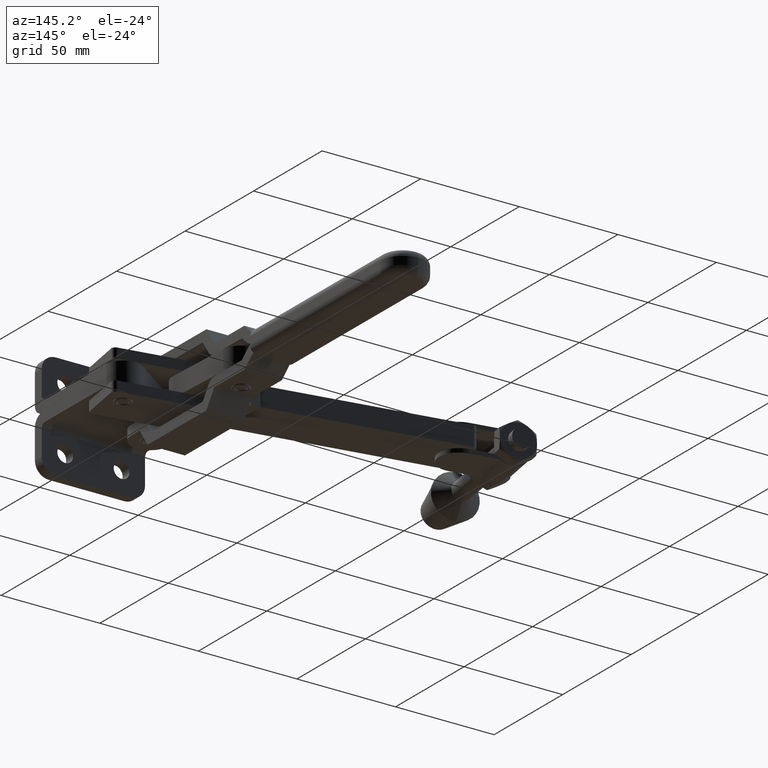
[diagram: clean part render]
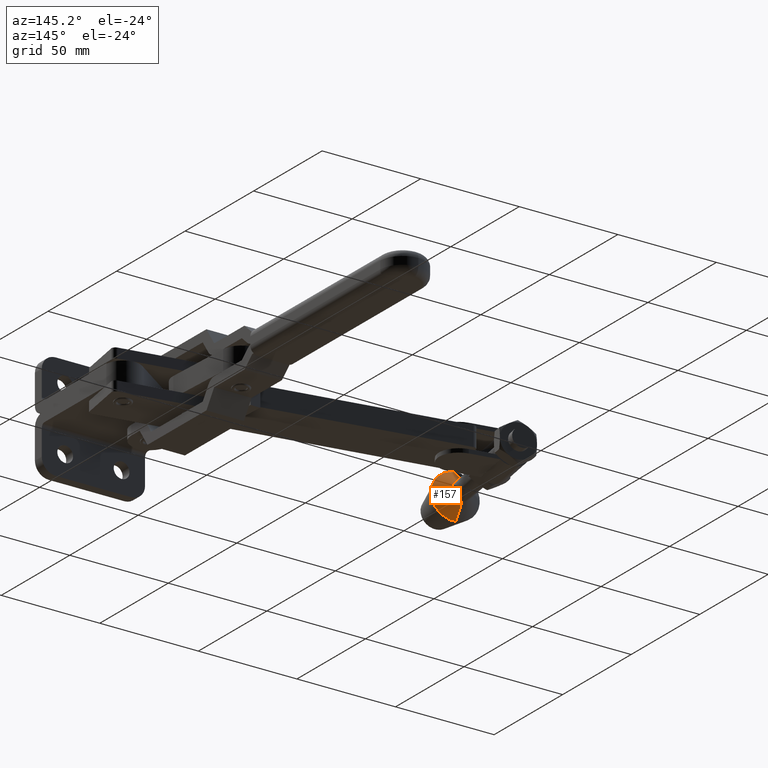
[diagram: same view with one face highlighted and labeled with its STEP entity id]
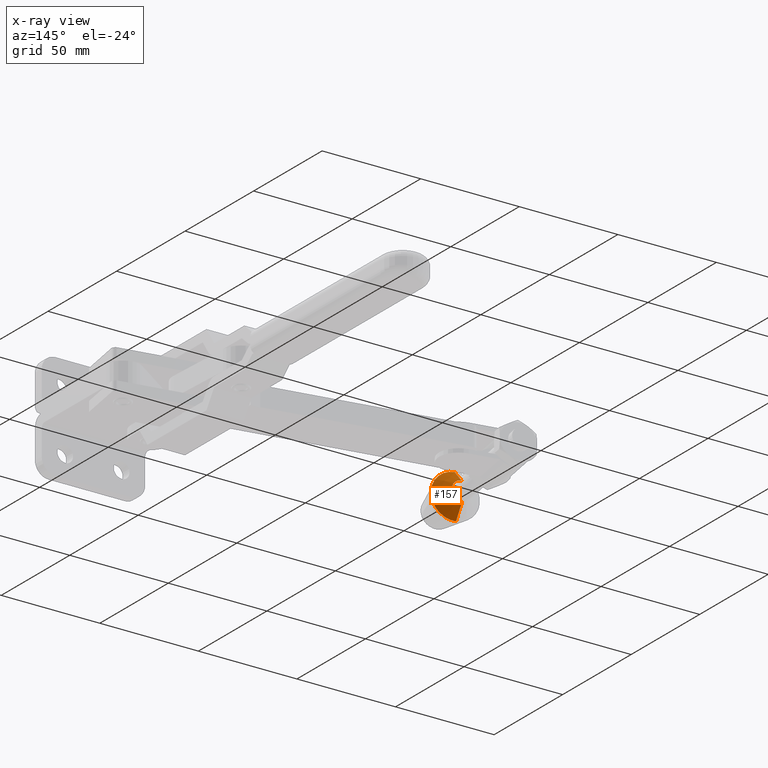
[diagram: x-ray of the same camera — body ghosted, the highlighted face saturated]
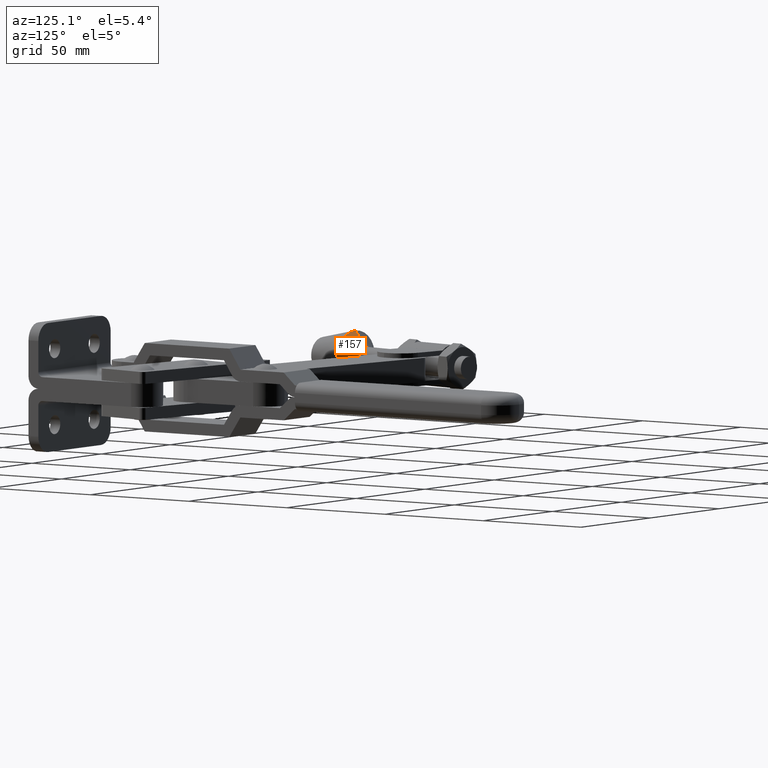
[diagram: same view with one face highlighted and labeled with its STEP entity id]
A machine part, auxiliary view. The second image highlights one B-rep face of the part: STEP entity #157.
The next image is the same camera in x-ray: the body ghosted, the highlighted face saturated — about 0% of this face is hidden behind the body in this view.
A second angle (auxiliary view) of the same face is appended — the face is thin or edge-on in the first view.
In plain terms, the highlighted conical surface has half-angle 44.723 deg.
Its self-contained STEP definition (entity closure, byte-faithful):
#157 = ADVANCED_FACE ( 'NONE', ( #4496 ), #6812, .T. ) ;
#840 = DIRECTION ( 'NONE',  ( -0.1071315741673477700, -0.7026214118334855900, 0.7034528963971542500 ) ) ;
#955 = DIRECTION ( 'NONE',  ( -0.1756898518898459800, -0.9844455677907865100, -8.379368557693178000E-015 ) ) ;
#1307 = DIRECTION ( 'NONE',  ( -0.1425287881150902000, -0.6963042202291190900, -0.7034528963971661300 ) ) ;
#1485 = EDGE_CURVE ( 'NONE', #2766, #8780, #8926, .T. ) ;
#1670 = CARTESIAN_POINT ( 'NONE',  ( -138.2011147629992000, 32.58936239767282200, 1.370554939042618600E-013 ) ) ;
#2766 = VERTEX_POINT ( 'NONE', #5164 ) ;
#2943 = EDGE_LOOP ( 'NONE', ( #9666, #9495, #6005, #5868 ) ) ;
#3620 = CARTESIAN_POINT ( 'NONE',  ( -137.9194190106190700, 32.53908934385145100, 11.19634405166051600 ) ) ;
#3725 = CARTESIAN_POINT ( 'NONE',  ( -138.2011147629992000, 32.58936239767282200, 1.370554939042618600E-013 ) ) ;
#3883 = AXIS2_PLACEMENT_3D ( 'NONE', #4841, #4880, #4945 ) ;
#4028 = DIRECTION ( 'NONE',  ( -0.02515140646251148500, 0.004488665519765569300, -0.9996735760411041800 ) ) ;
#4496 = FACE_OUTER_BOUND ( 'NONE', #2943, .T. ) ;
#4546 = DIRECTION ( 'NONE',  ( -0.02515140646251148500, 0.004488665519765569300, -0.9996735760411041800 ) ) ;
#4841 = CARTESIAN_POINT ( 'NONE',  ( -137.0591307257152200, 38.98825858831292400, 1.915213895292675300E-013 ) ) ;
#4880 = DIRECTION ( 'NONE',  ( -0.1756898518898459800, -0.9844455677907865100, -8.379368557693178000E-015 ) ) ;
#4945 = DIRECTION ( 'NONE',  ( -0.02515140646251232100, 0.004488665519765048900, -0.9996735760411040700 ) ) ;
#5112 = EDGE_CURVE ( 'NONE', #5430, #7339, #10080, .T. ) ;
#5164 = CARTESIAN_POINT ( 'NONE',  ( -137.1789142989929400, 39.00963585785080300, -4.760945405895592200 ) ) ;
#5430 = VERTEX_POINT ( 'NONE', #7472 ) ;
#5795 = CARTESIAN_POINT ( 'NONE',  ( -137.9194190106190700, 32.53908934385145100, 11.19634405166051600 ) ) ;
#5868 = ORIENTED_EDGE ( 'NONE', *, *, #6201, .F. ) ;
#6005 = ORIENTED_EDGE ( 'NONE', *, *, #5112, .F. ) ;
#6201 = EDGE_CURVE ( 'NONE', #2766, #5430, #10681, .T. ) ;
#6812 = CONICAL_SURFACE ( 'NONE', #9204, 11.20000000000001000, 0.7805672831034714500 ) ;
#6959 = LINE ( 'NONE', #5795, #7211 ) ;
#6981 = CARTESIAN_POINT ( 'NONE',  ( -136.9393471524375100, 38.96688131877504400, 4.760945405895971500 ) ) ;
#7123 = CARTESIAN_POINT ( 'NONE',  ( -138.4828105153793300, 32.63963545149419300, -11.19634405166024000 ) ) ;
#7211 = VECTOR ( 'NONE', #840, 1000.000000000000100 ) ;
#7339 = VERTEX_POINT ( 'NONE', #3620 ) ;
#7472 = CARTESIAN_POINT ( 'NONE',  ( -138.4828105153793300, 32.63963545149419300, -11.19634405166024400 ) ) ;
#8544 = VECTOR ( 'NONE', #1307, 1000.000000000000000 ) ;
#8716 = AXIS2_PLACEMENT_3D ( 'NONE', #3725, #9488, #4546 ) ;
#8780 = VERTEX_POINT ( 'NONE', #6981 ) ;
#8926 = CIRCLE ( 'NONE', #3883, 4.762500000000013500 ) ;
#9108 = EDGE_CURVE ( 'NONE', #8780, #7339, #6959, .T. ) ;
#9204 = AXIS2_PLACEMENT_3D ( 'NONE', #1670, #955, #4028 ) ;
#9488 = DIRECTION ( 'NONE',  ( -0.1756898518898459800, -0.9844455677907865100, -8.379368557693178000E-015 ) ) ;
#9495 = ORIENTED_EDGE ( 'NONE', *, *, #9108, .T. ) ;
#9666 = ORIENTED_EDGE ( 'NONE', *, *, #1485, .T. ) ;
#10080 = CIRCLE ( 'NONE', #8716, 11.20000000000001000 ) ;
#10681 = LINE ( 'NONE', #7123, #8544 ) ;